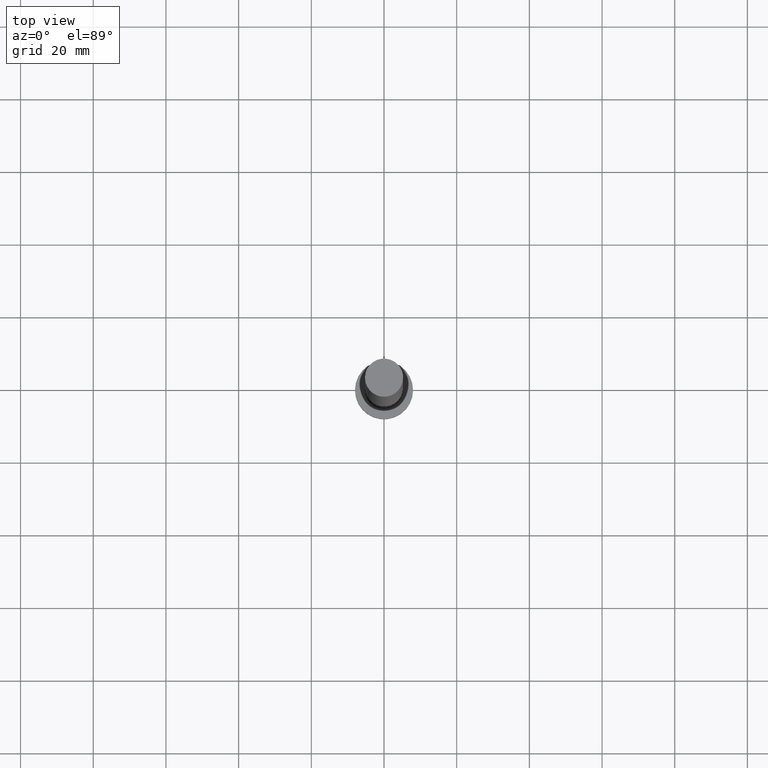
[diagram: clean part render]
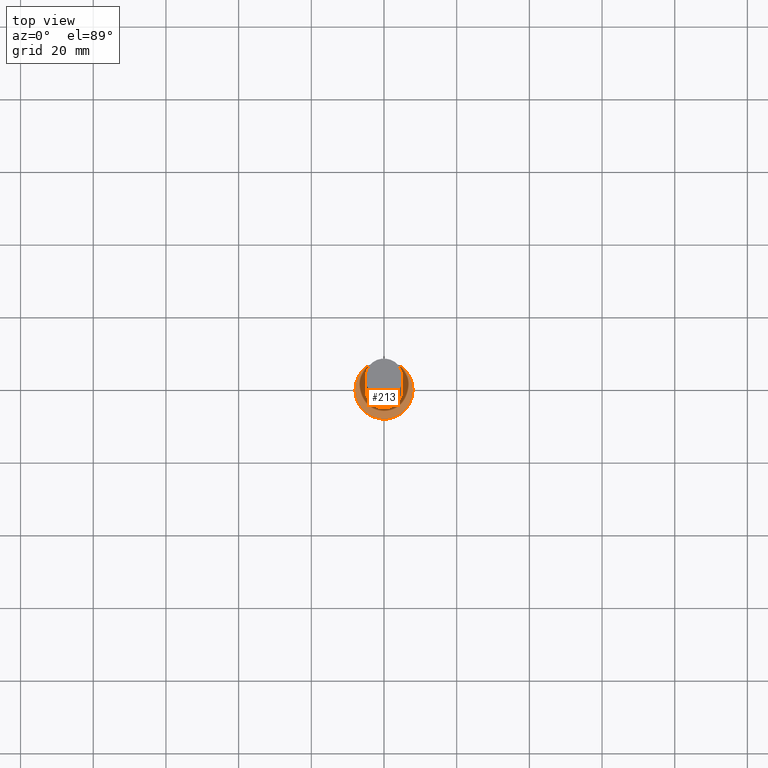
[diagram: same view with one face highlighted and labeled with its STEP entity id]
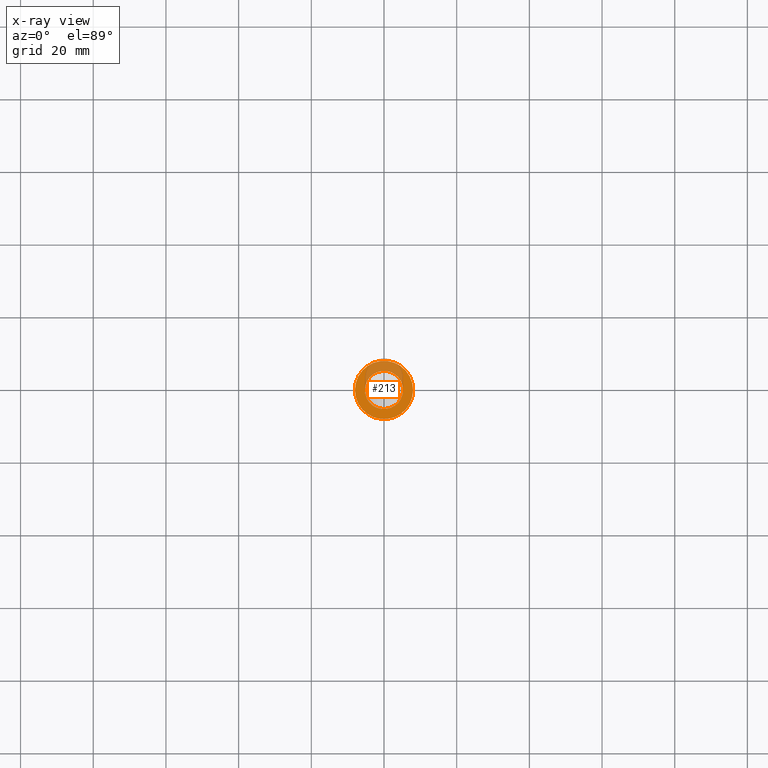
[diagram: x-ray of the same camera — body ghosted, the highlighted face saturated]
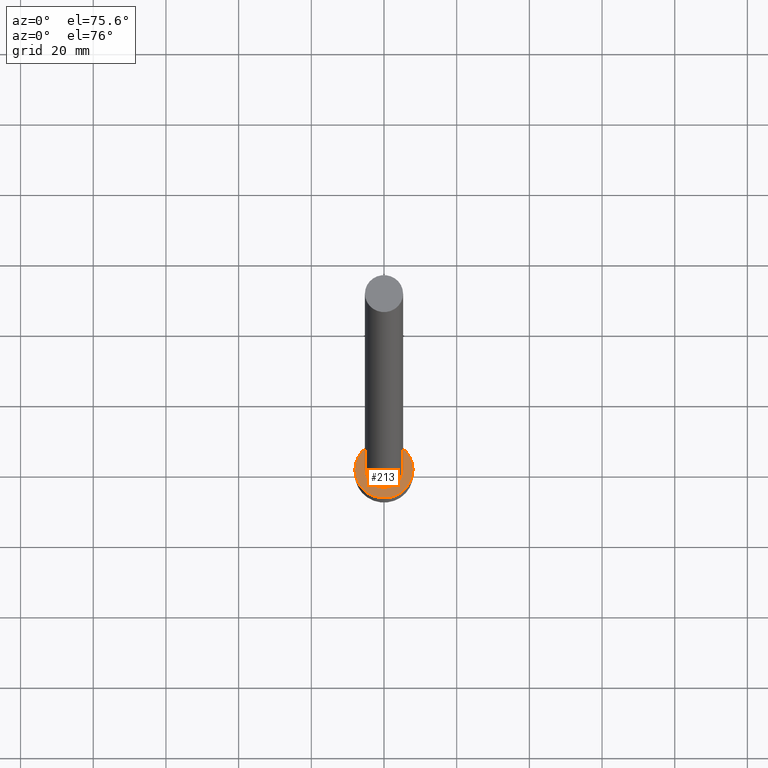
[diagram: same view with one face highlighted and labeled with its STEP entity id]
A machine part, top view. The second image highlights one B-rep face of the part: STEP entity #213.
The next image is the same camera in x-ray: the body ghosted, the highlighted face saturated — about 28% of this face is hidden behind the body in this view.
A second angle (auxiliary view) of the same face is appended — the face is thin or edge-on in the first view.
In plain terms, the highlighted planar face has unit normal (0, 0, 1).
Its self-contained STEP definition (entity closure, byte-faithful):
#5 = CARTESIAN_POINT ( 'NONE',  ( 0.000000000000000000, 0.000000000000000000, 5.000000000000000000 ) ) ;
#8 = AXIS2_PLACEMENT_3D ( 'NONE', #94, #197, #251 ) ;
#9 = DIRECTION ( 'NONE',  ( 0.000000000000000000, 0.000000000000000000, 1.000000000000000000 ) ) ;
#16 = PLANE ( 'NONE',  #79 ) ;
#27 = ORIENTED_EDGE ( 'NONE', *, *, #175, .F. ) ;
#30 = CARTESIAN_POINT ( 'NONE',  ( -8.000000000000000000, 0.000000000000000000, 5.000000000000000000 ) ) ;
#32 = CARTESIAN_POINT ( 'NONE',  ( 8.000000000000000000, 9.797174393178825657E-16, 5.000000000000000000 ) ) ;
#37 = EDGE_CURVE ( 'NONE', #203, #180, #229, .T. ) ;
#45 = EDGE_LOOP ( 'NONE', ( #178, #77 ) ) ;
#49 = CARTESIAN_POINT ( 'NONE',  ( -5.250000000000000000, 0.000000000000000000, 5.000000000000000000 ) ) ;
#52 = EDGE_CURVE ( 'NONE', #176, #58, #136, .T. ) ;
#53 = CARTESIAN_POINT ( 'NONE',  ( 0.000000000000000000, 0.000000000000000000, 5.000000000000000000 ) ) ;
#58 = VERTEX_POINT ( 'NONE', #127 ) ;
#71 = AXIS2_PLACEMENT_3D ( 'NONE', #5, #9, #84 ) ;
#77 = ORIENTED_EDGE ( 'NONE', *, *, #37, .T. ) ;
#79 = AXIS2_PLACEMENT_3D ( 'NONE', #53, #166, #134 ) ;
#84 = DIRECTION ( 'NONE',  ( 1.000000000000000000, 0.000000000000000000, 0.000000000000000000 ) ) ;
#87 = EDGE_LOOP ( 'NONE', ( #140, #27 ) ) ;
#92 = EDGE_CURVE ( 'NONE', #180, #203, #240, .T. ) ;
#94 = CARTESIAN_POINT ( 'NONE',  ( 0.000000000000000000, 0.000000000000000000, 5.000000000000000000 ) ) ;
#98 = CARTESIAN_POINT ( 'NONE',  ( 0.000000000000000000, 0.000000000000000000, 5.000000000000000000 ) ) ;
#125 = CARTESIAN_POINT ( 'NONE',  ( 0.000000000000000000, 0.000000000000000000, 5.000000000000000000 ) ) ;
#127 = CARTESIAN_POINT ( 'NONE',  ( 5.250000000000000000, 6.429395695523604153E-16, 5.000000000000000000 ) ) ;
#129 = DIRECTION ( 'NONE',  ( 1.000000000000000000, 0.000000000000000000, 0.000000000000000000 ) ) ;
#131 = AXIS2_PLACEMENT_3D ( 'NONE', #125, #244, #129 ) ;
#134 = DIRECTION ( 'NONE',  ( 1.000000000000000000, 0.000000000000000000, -0.000000000000000000 ) ) ;
#136 = CIRCLE ( 'NONE', #8, 5.250000000000000000 ) ;
#140 = ORIENTED_EDGE ( 'NONE', *, *, #52, .F. ) ;
#153 = CIRCLE ( 'NONE', #71, 5.250000000000000000 ) ;
#166 = DIRECTION ( 'NONE',  ( 0.000000000000000000, 0.000000000000000000, 1.000000000000000000 ) ) ;
#174 = DIRECTION ( 'NONE',  ( 1.000000000000000000, 0.000000000000000000, 0.000000000000000000 ) ) ;
#175 = EDGE_CURVE ( 'NONE', #58, #176, #153, .T. ) ;
#176 = VERTEX_POINT ( 'NONE', #49 ) ;
#178 = ORIENTED_EDGE ( 'NONE', *, *, #92, .T. ) ;
#180 = VERTEX_POINT ( 'NONE', #30 ) ;
#187 = FACE_BOUND ( 'NONE', #87, .T. ) ;
#194 = FACE_OUTER_BOUND ( 'NONE', #45, .T. ) ;
#197 = DIRECTION ( 'NONE',  ( 0.000000000000000000, 0.000000000000000000, 1.000000000000000000 ) ) ;
#203 = VERTEX_POINT ( 'NONE', #32 ) ;
#212 = DIRECTION ( 'NONE',  ( 0.000000000000000000, 0.000000000000000000, 1.000000000000000000 ) ) ;
#213 = ADVANCED_FACE ( 'NONE', ( #187, #194 ), #16, .T. ) ;
#229 = CIRCLE ( 'NONE', #243, 8.000000000000000000 ) ;
#240 = CIRCLE ( 'NONE', #131, 8.000000000000000000 ) ;
#243 = AXIS2_PLACEMENT_3D ( 'NONE', #98, #212, #174 ) ;
#244 = DIRECTION ( 'NONE',  ( 0.000000000000000000, 0.000000000000000000, 1.000000000000000000 ) ) ;
#251 = DIRECTION ( 'NONE',  ( 1.000000000000000000, 0.000000000000000000, 0.000000000000000000 ) ) ;